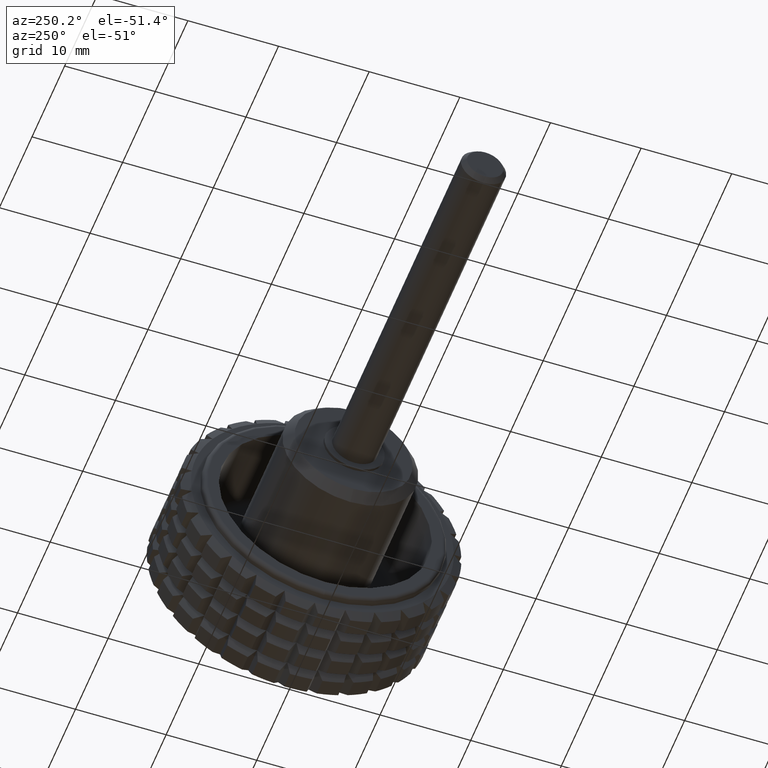
[diagram: clean part render]
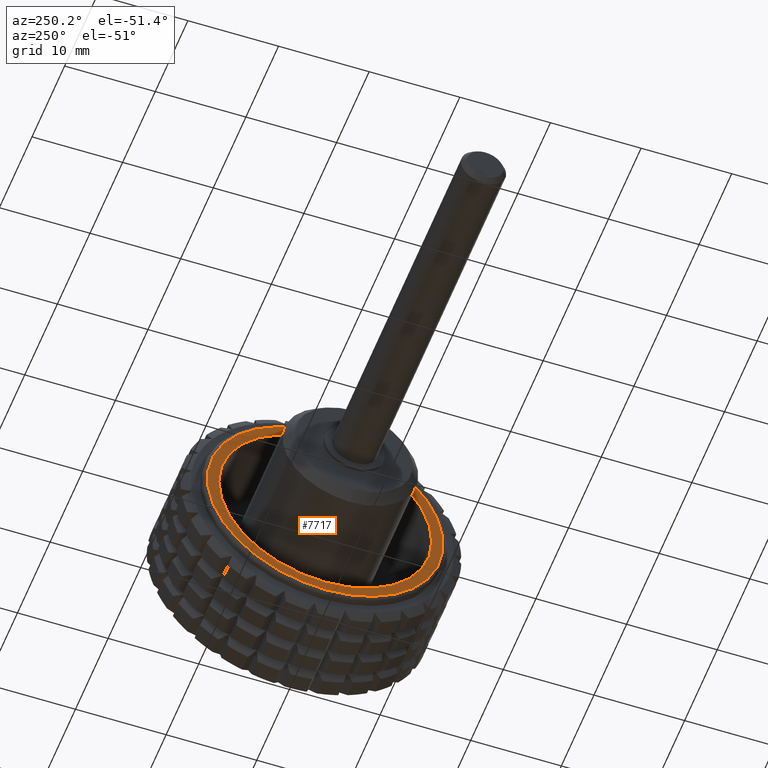
[diagram: same view with one face highlighted and labeled with its STEP entity id]
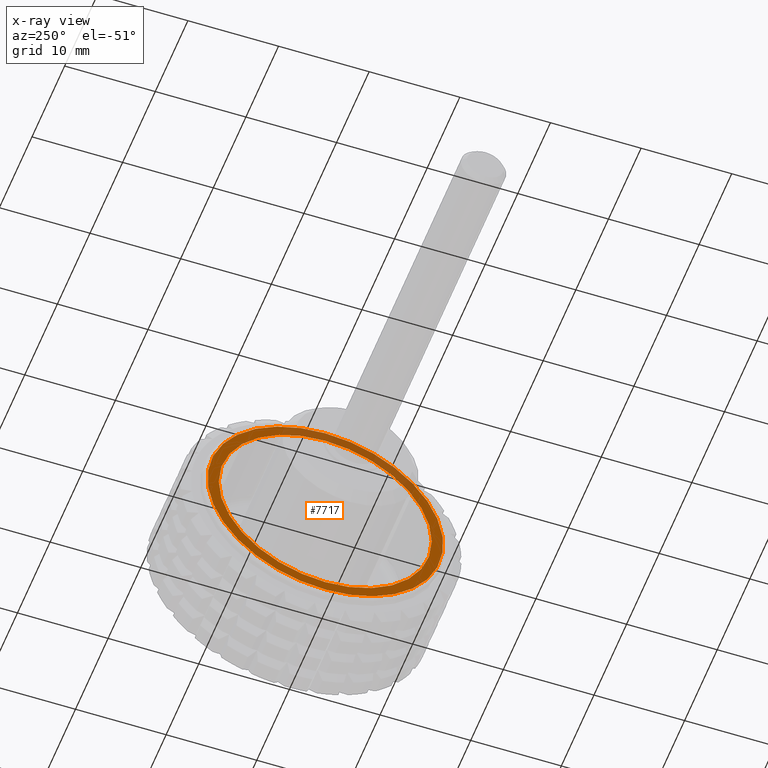
[diagram: x-ray of the same camera — body ghosted, the highlighted face saturated]
A machine part, auxiliary view. The second image highlights one B-rep face of the part: STEP entity #7717.
The next image is the same camera in x-ray: the body ghosted, the highlighted face saturated — about 21% of this face is hidden behind the body in this view.
In plain terms, the highlighted planar face has unit normal (1, 0, 0).
Its self-contained STEP definition (entity closure, byte-faithful):
#1320=PLANE('',#8645);
#1449=FACE_BOUND('',#2586,.T.);
#2011=FACE_OUTER_BOUND('',#2585,.T.);
#2585=EDGE_LOOP('',(#6924));
#2586=EDGE_LOOP('',(#6925));
#2964=CIRCLE('',#8644,13.);
#2965=CIRCLE('',#8646,11.75);
#3551=VERTEX_POINT('',#14401);
#3552=VERTEX_POINT('',#14404);
#4678=EDGE_CURVE('',#3551,#3551,#2964,.T.);
#4679=EDGE_CURVE('',#3552,#3552,#2965,.T.);
#6924=ORIENTED_EDGE('',*,*,#4678,.F.);
#6925=ORIENTED_EDGE('',*,*,#4679,.T.);
#7717=ADVANCED_FACE('',(#2011,#1449),#1320,.F.);
#8644=AXIS2_PLACEMENT_3D('',#14402,#10820,#10821);
#8645=AXIS2_PLACEMENT_3D('',#14403,#10822,#10823);
#8646=AXIS2_PLACEMENT_3D('',#14405,#10824,#10825);
#10820=DIRECTION('center_axis',(1.,0.,0.));
#10821=DIRECTION('ref_axis',(0.,0.,-1.));
#10822=DIRECTION('center_axis',(1.,0.,0.));
#10823=DIRECTION('ref_axis',(0.,0.,-1.));
#10824=DIRECTION('center_axis',(1.,0.,0.));
#10825=DIRECTION('ref_axis',(0.,0.,-1.));
#14401=CARTESIAN_POINT('',(19.,0.,-13.));
#14402=CARTESIAN_POINT('Origin',(19.,0.,0.));
#14403=CARTESIAN_POINT('Origin',(19.,11.75,0.));
#14404=CARTESIAN_POINT('',(19.,0.,-11.75));
#14405=CARTESIAN_POINT('Origin',(19.,0.,0.));